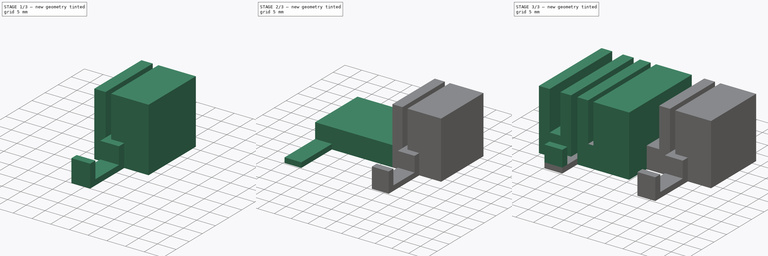
[diagram: build sequence overview — one tinted view per stage of 3, left to right]
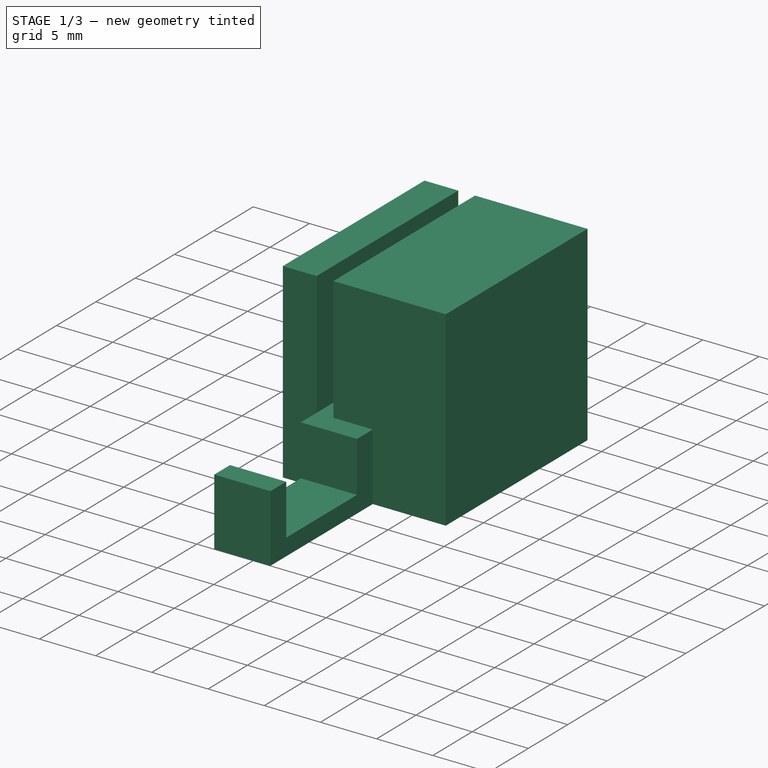
[diagram: stage 1 of 3 — iso view after this stage's code; geometry added in this stage tinted green]
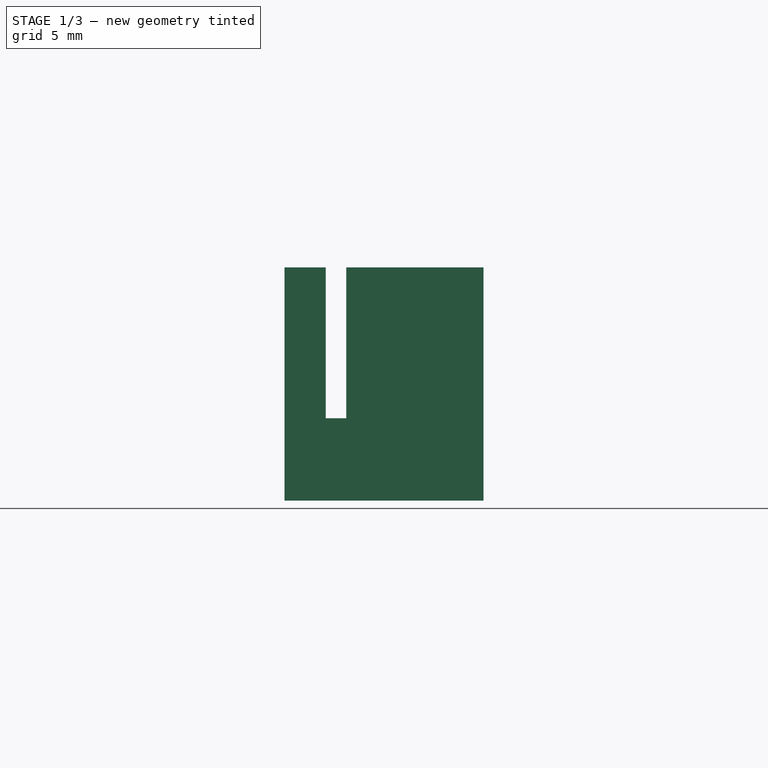
[diagram: stage 1 of 3 — front view after this stage's code; geometry added in this stage tinted green]
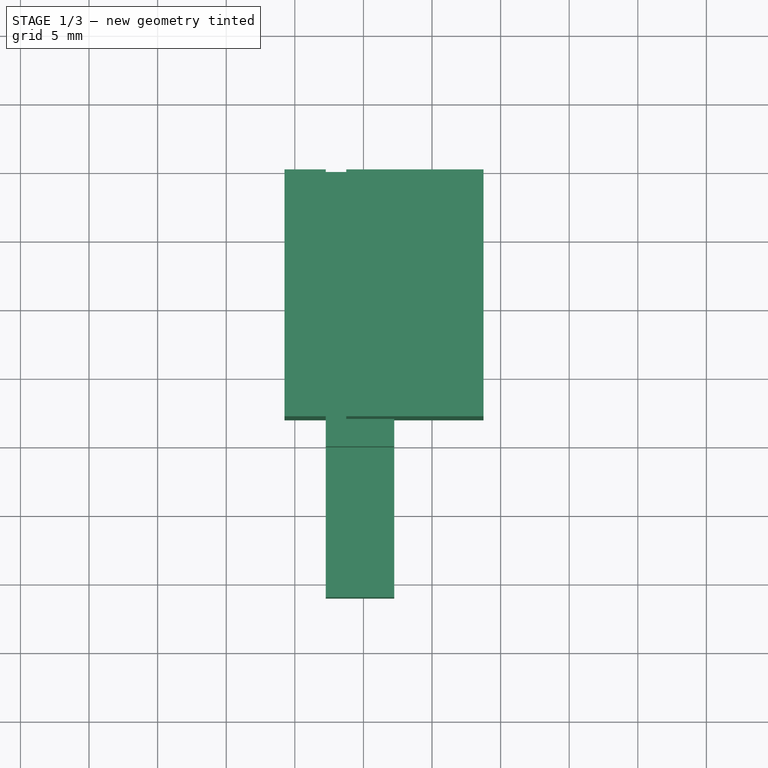
[diagram: stage 1 of 3 — top view after this stage's code; geometry added in this stage tinted green]
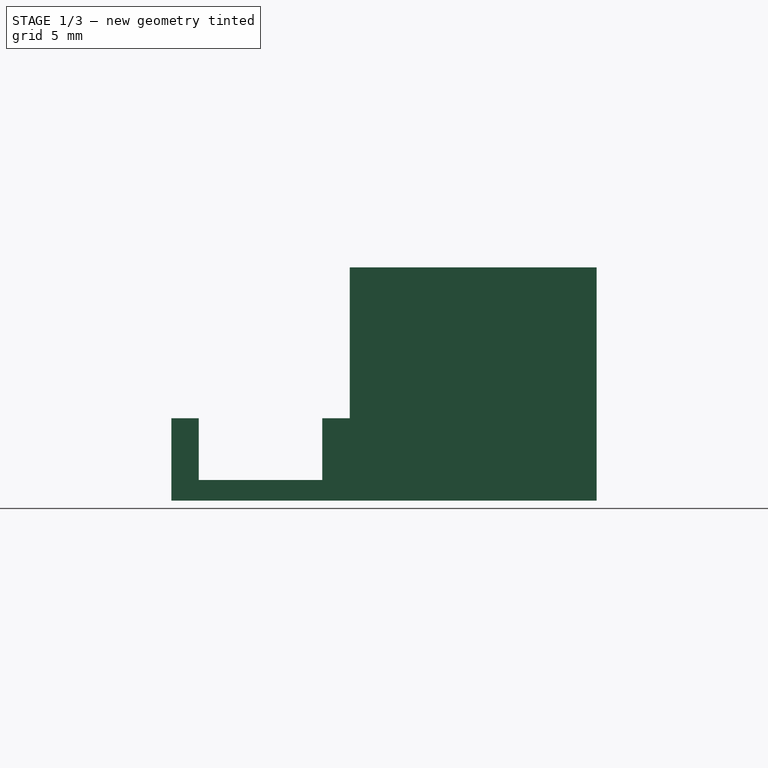
[diagram: stage 1 of 3 — right view after this stage's code; geometry added in this stage tinted green]
FCSTD DOCUMENT  (FreeCAD 0.16R)
Label: dystans
License: All rights reserved
LicenseURL: http://en.wikipedia.org/wiki/All_rights_reserved
objects: Sketcher::SketchObject×8, PartDesign::Pad×8
note: 24 computed .brp shape members not serialized (recipe doc carries the construction recipe); baked Part::Feature solids carry a one-line shape summary decoded from their .brp

FEATURE [Sketcher::SketchObject] Sketch003
  Placement = pos=(28,0,0) rot=(1,0,0;1.5708rad)
  sketch-geometry (8):
    g0: LineSegment StartX=-3.75 StartY=17 StartZ=0 EndX=-0.75 EndY=17 EndZ=0
    g1: LineSegment StartX=-0.75 StartY=17 StartZ=0 EndX=-0.75 EndY=6 EndZ=0
    g2: LineSegment StartX=-0.75 StartY=6 StartZ=0 EndX=0.75 EndY=6 EndZ=0
    g3: LineSegment StartX=0.75 StartY=6 StartZ=0 EndX=0.75 EndY=17 EndZ=0
    g4: LineSegment StartX=0.75 StartY=17 StartZ=0 EndX=10.75 EndY=17 EndZ=0
    g5: LineSegment StartX=10.75 StartY=17 StartZ=0 EndX=10.75 EndY=0 EndZ=0
    g6: LineSegment StartX=10.75 StartY=0 StartZ=0 EndX=-3.75 EndY=0 EndZ=0
    g7: LineSegment StartX=-3.75 StartY=0 StartZ=0 EndX=-3.75 EndY=17 EndZ=0
  constraints (23):
    c: Horizontal(g0)
    c: Coincident(g1,g0)
    c: Vertical(g1)
    c: Coincident(g2,g1)
    c: Horizontal(g2)
    c: Vertical(g3)
    c: Coincident(g4,g3)
    c: Horizontal(g4)
    c: Vertical(g5)
    c: Coincident(g6,g5)
    c: Horizontal(g6)
    c: Coincident(g7,g6)
    c: Vertical(g7)
    c: Coincident(g7,g0)
    c: Coincident(g2,g3)
    c: Symmetric(g0,g3,g-2)
    c: PointOnObject(g5,g-1)
    c: DistanceX(g0,g0) = 3
    c: DistanceY(g1,g1) = 11
    c: DistanceY(g7,g7) = 17
    c: DistanceX(g2,g2) = 1.5
    c: Coincident(g5,g4)
    c: DistanceX(g4,g4) = 10
FEATURE [PartDesign::Pad] Pad002
  Length = 18
  Length2 = 100
  Placement = pos=(28,0,0) rot=(1,0,0;1.5708rad)
  Sketch = -> Sketch003
  Type = 0
FEATURE [Sketcher::SketchObject] Sketch
  ExternalGeometry = -> [Pad002]
  Placement = pos=(28,-18,0) rot=(1,0,0;1.5708rad)
  Support = -> Pad002 [Face10]
  sketch-geometry (5):
    g0: LineSegment StartX=-0.75 StartY=0 StartZ=0 EndX=4.25 EndY=0 EndZ=0
    g1: LineSegment StartX=4.25 StartY=0 StartZ=0 EndX=4.25 EndY=1.5 EndZ=0
    g2: LineSegment StartX=4.25 StartY=1.5 StartZ=0 EndX=-0.75 EndY=1.5 EndZ=0
    g3: LineSegment StartX=-0.75 StartY=1.5 StartZ=0 EndX=-0.75 EndY=0 EndZ=0
    g4: LineSegment [constr] StartX=-0.75 StartY=6 StartZ=0 EndX=-0.75 EndY=0 EndZ=0
  constraints (15):
    c: Coincident(g0,g1)
    c: Coincident(g1,g2)
    c: Coincident(g2,g3)
    c: Coincident(g3,g0)
    c: Horizontal(g0)
    c: Horizontal(g2)
    c: Vertical(g1)
    c: Vertical(g3)
    c: DistanceY(g0,g1) = 1.5
    c: PointOnObject(g0,g-3)
    c: Coincident(g4,g-8)
    c: PointOnObject(g4,g-3)
    c: Vertical(g4)
    c: PointOnObject(g2,g4)
    c: DistanceX(g2,g2) = 5
FEATURE [PartDesign::Pad] Pad003
  Length = 13
  Length2 = 100
  Placement = pos=(28,0,0) rot=(1,0,0;1.5708rad)
  Sketch = -> Sketch
  Type = 0
  expr: Length = 31 - 18
FEATURE [Sketcher::SketchObject] Sketch004
  ExternalGeometry = -> [Pad003]
  Placement = pos=(28,0,1.5) rot=(0,0,1;3.14159rad)
  Support = -> Pad003 [Face12]
  sketch-geometry (12):
    g0: LineSegment StartX=-4.25 StartY=31 StartZ=0 EndX=0.75 EndY=31 EndZ=0
    g1: LineSegment StartX=0.75 StartY=31 StartZ=0 EndX=0.75 EndY=29 EndZ=0
    g2: LineSegment StartX=0.75 StartY=29 StartZ=0 EndX=-4.25 EndY=29 EndZ=0
    g3: LineSegment StartX=-4.25 StartY=29 StartZ=0 EndX=-4.25 EndY=31 EndZ=0
    g4: LineSegment StartX=0.75 StartY=18 StartZ=0 EndX=-4.25 EndY=18 EndZ=0
    g5: LineSegment StartX=-4.25 StartY=18 StartZ=0 EndX=-4.25 EndY=20 EndZ=0
    g6: LineSegment StartX=-4.25 StartY=20 StartZ=0 EndX=0.75 EndY=20 EndZ=0
    g7: LineSegment StartX=0.75 StartY=20 StartZ=0 EndX=0.75 EndY=18 EndZ=0
    g8: LineSegment [constr] StartX=-4.25 StartY=20 StartZ=0 EndX=-4.25 EndY=18 EndZ=0
    g9: LineSegment [constr] StartX=-4.25 StartY=31 StartZ=0 EndX=-4.25 EndY=29 EndZ=0
    g10: LineSegment [constr] StartX=-4.25 StartY=20 StartZ=0 EndX=0.75 EndY=18 EndZ=0
    g11: LineSegment [constr] StartX=-4.25 StartY=31 StartZ=0 EndX=0.75 EndY=29 EndZ=0
  constraints (30):
    c: Coincident(g0,g1)
    c: Coincident(g1,g2)
    c: Coincident(g2,g3)
    c: Coincident(g3,g0)
    c: Horizontal(g0)
    c: Horizontal(g2)
    c: Vertical(g1)
    c: Vertical(g3)
    c: Coincident(g0,g-4)
    c: PointOnObject(g1,g-5)
    c: Coincident(g4,g5)
    c: Coincident(g5,g6)
    c: Coincident(g6,g7)
    c: Coincident(g7,g4)
    c: Horizontal(g4)
    c: Horizontal(g6)
    c: Vertical(g5)
    c: Vertical(g7)
    c: Coincident(g4,g-6)
    c: PointOnObject(g5,g-3)
    c: DistanceY(g5,g2) = 9
    c: Coincident(g8,g5)
    c: Coincident(g8,g4)
    c: Coincident(g9,g0)
    c: Coincident(g9,g2)
    c: Coincident(g10,g5)
    c: Coincident(g10,g4)
    c: Coincident(g11,g0)
    c: Coincident(g11,g1)
    c: Equal(g10,g11)
FEATURE [PartDesign::Pad] Pad004  label="antentowy"
  Length = 4.5
  Length2 = 100
  Placement = pos=(28,0,0) rot=(1,0,0;1.5708rad)
  Sketch = -> Sketch004
  Type = 0
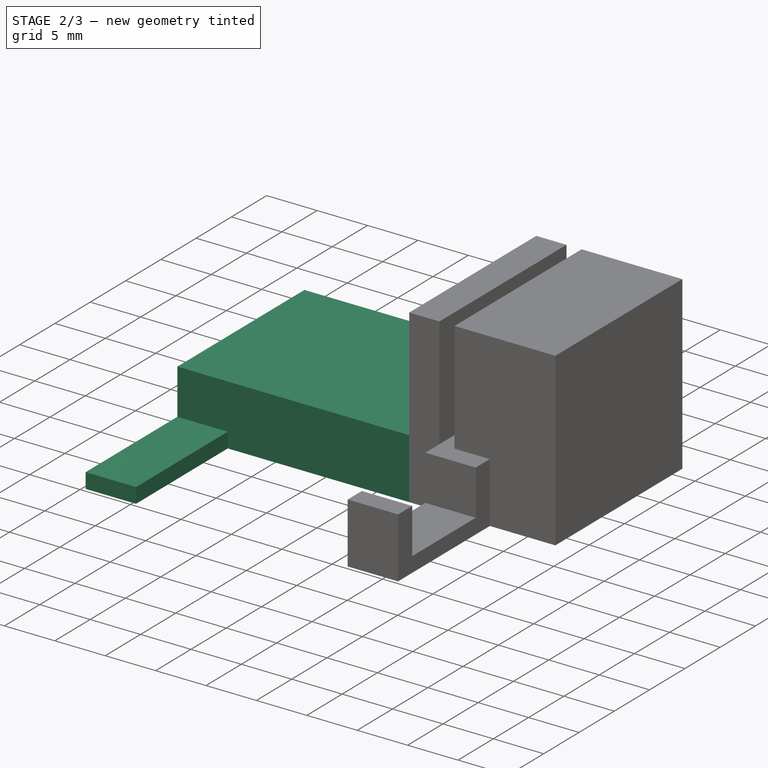
[diagram: stage 2 of 3 — iso view after this stage's code; geometry added in this stage tinted green]
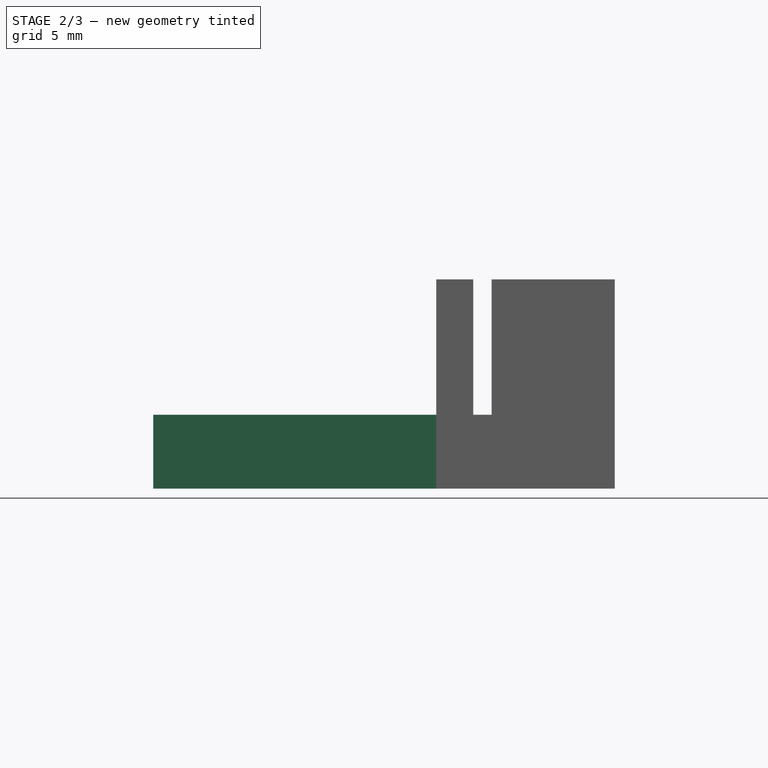
[diagram: stage 2 of 3 — front view after this stage's code; geometry added in this stage tinted green]
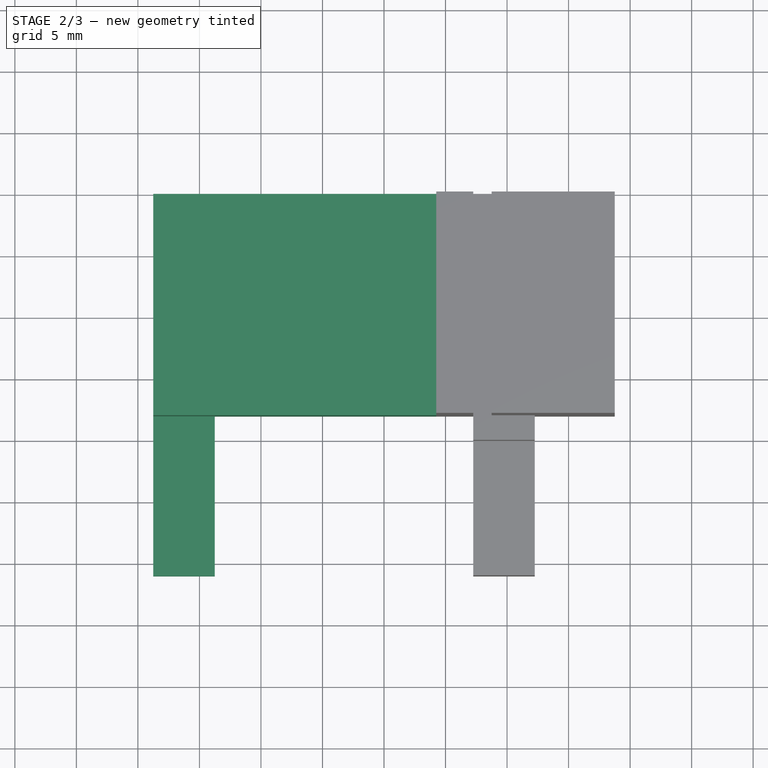
[diagram: stage 2 of 3 — top view after this stage's code; geometry added in this stage tinted green]
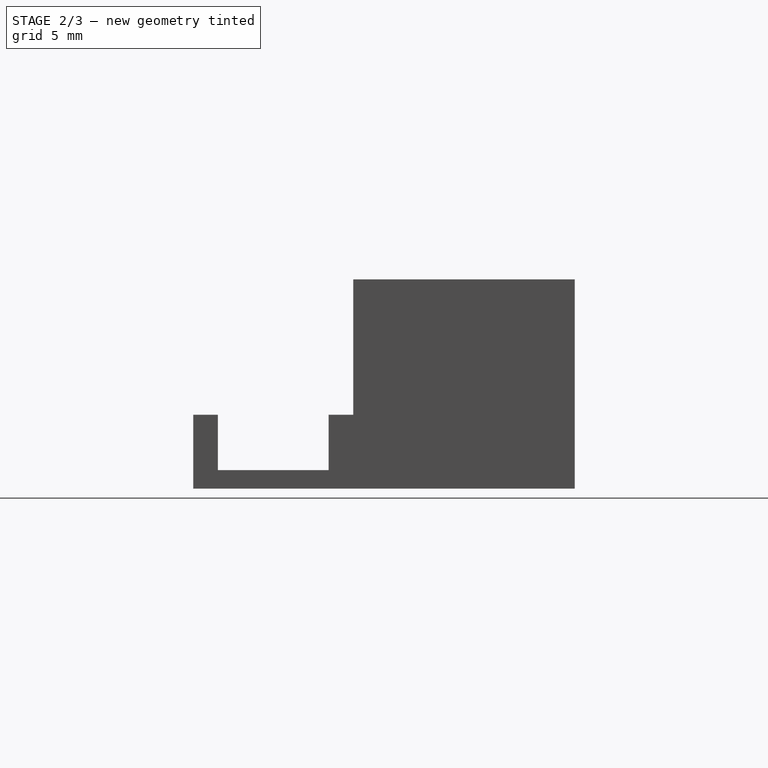
[diagram: stage 2 of 3 — right view after this stage's code; geometry added in this stage tinted green]
FEATURE [Sketcher::SketchObject] Sketch005
  ExternalGeometry = -> [Pad004]
  Placement = pos=(24.25,0,0) rot=(0.707107,0,-0.707107;3.14159rad)
  Support = -> Pad004 [Face2]
  sketch-geometry (4):
    g0: LineSegment StartX=0 StartY=18 StartZ=0 EndX=-6 EndY=18 EndZ=0
    g1: LineSegment StartX=-6 StartY=18 StartZ=0 EndX=-6 EndY=0 EndZ=0
    g2: LineSegment StartX=-6 StartY=0 StartZ=0 EndX=0 EndY=0 EndZ=0
    g3: LineSegment StartX=0 StartY=0 StartZ=0 EndX=0 EndY=18 EndZ=0
  constraints (11):
    c: Coincident(g0,g1)
    c: Coincident(g1,g2)
    c: Coincident(g2,g3)
    c: Coincident(g3,g0)
    c: Horizontal(g0)
    c: Horizontal(g2)
    c: Vertical(g1)
    c: Vertical(g3)
    c: Coincident(g0,g-4)
    c: PointOnObject(g1,g-5)
    c: DistanceX(g1,g-1) = 6
FEATURE [PartDesign::Pad] Pad005
  Length = 23
  Length2 = 100
  Placement = pos=(28,0,0) rot=(1,0,0;1.5708rad)
  Sketch = -> Sketch005
  Type = 0
FEATURE [Sketcher::SketchObject] Sketch006
  ExternalGeometry = -> [Pad005]
  Placement = pos=(28,-18,0) rot=(1,0,0;1.5708rad)
  Support = -> Pad005 [Face13]
  sketch-geometry (4):
    g0: LineSegment StartX=-26.75 StartY=0 StartZ=0 EndX=-21.75 EndY=0 EndZ=0
    g1: LineSegment StartX=-21.75 StartY=0 StartZ=0 EndX=-21.75 EndY=1.5 EndZ=0
    g2: LineSegment StartX=-21.75 StartY=1.5 StartZ=0 EndX=-26.75 EndY=1.5 EndZ=0
    g3: LineSegment StartX=-26.75 StartY=1.5 StartZ=0 EndX=-26.75 EndY=0 EndZ=0
  constraints (11):
    c: Coincident(g0,g1)
    c: Coincident(g1,g2)
    c: Coincident(g2,g3)
    c: Coincident(g3,g0)
    c: Horizontal(g0)
    c: Horizontal(g2)
    c: Vertical(g1)
    c: Vertical(g3)
    c: Coincident(g0,g-4)
    c: DistanceX(g2,g2) = 5
    c: DistanceY(g1,g1) = 1.5
FEATURE [PartDesign::Pad] Pad006
  Length = 13
  Length2 = 100
  Placement = pos=(28,0,0) rot=(1,0,0;1.5708rad)
  Sketch = -> Sketch006
  Type = 0
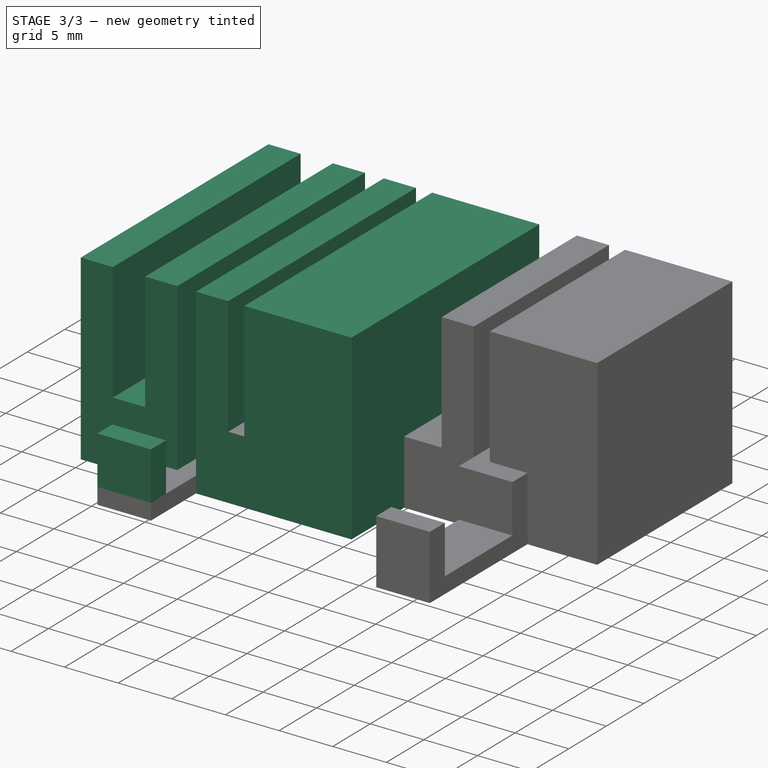
[diagram: stage 3 of 3 — iso view after this stage's code; geometry added in this stage tinted green]
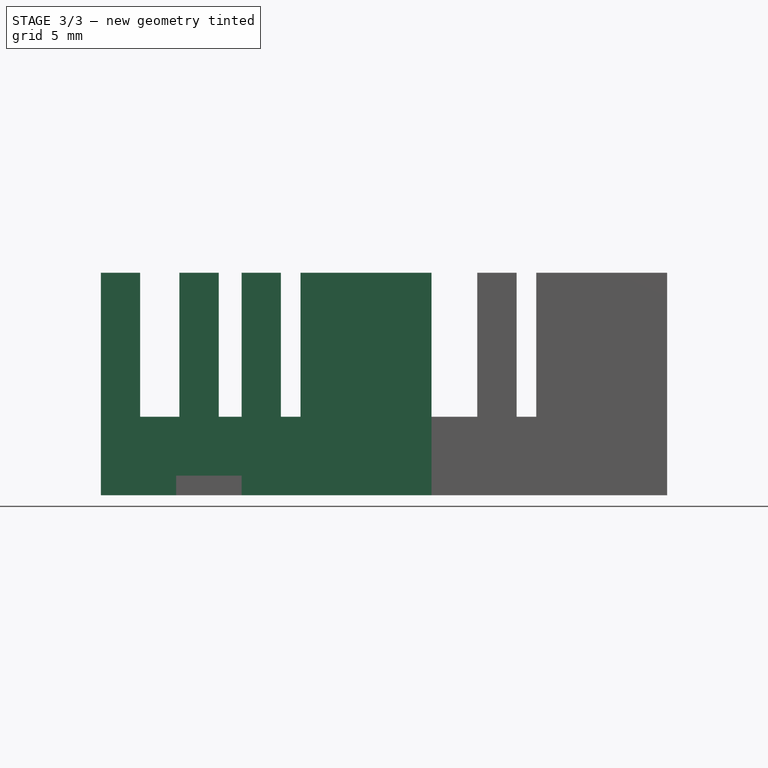
[diagram: stage 3 of 3 — front view after this stage's code; geometry added in this stage tinted green]
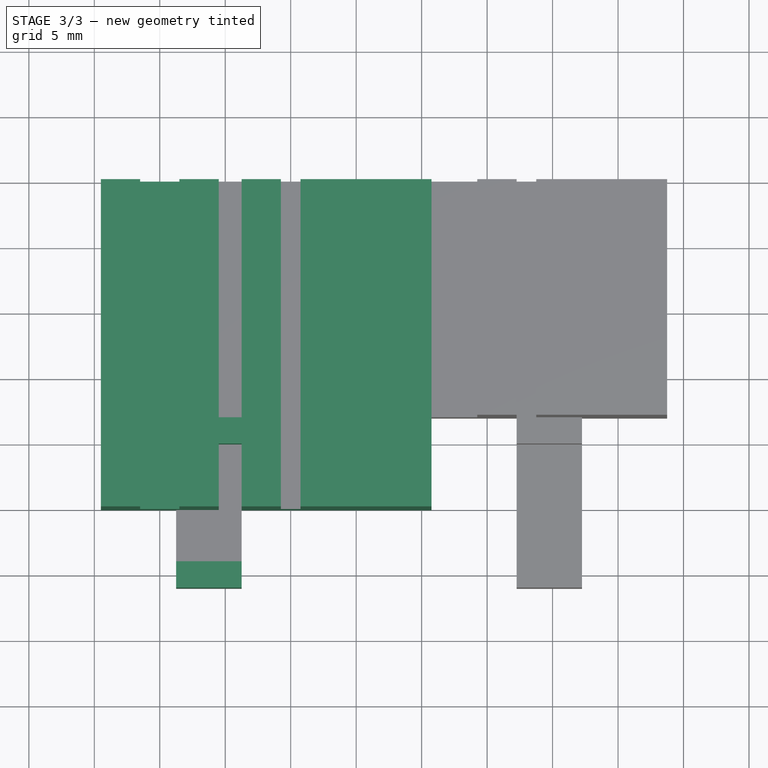
[diagram: stage 3 of 3 — top view after this stage's code; geometry added in this stage tinted green]
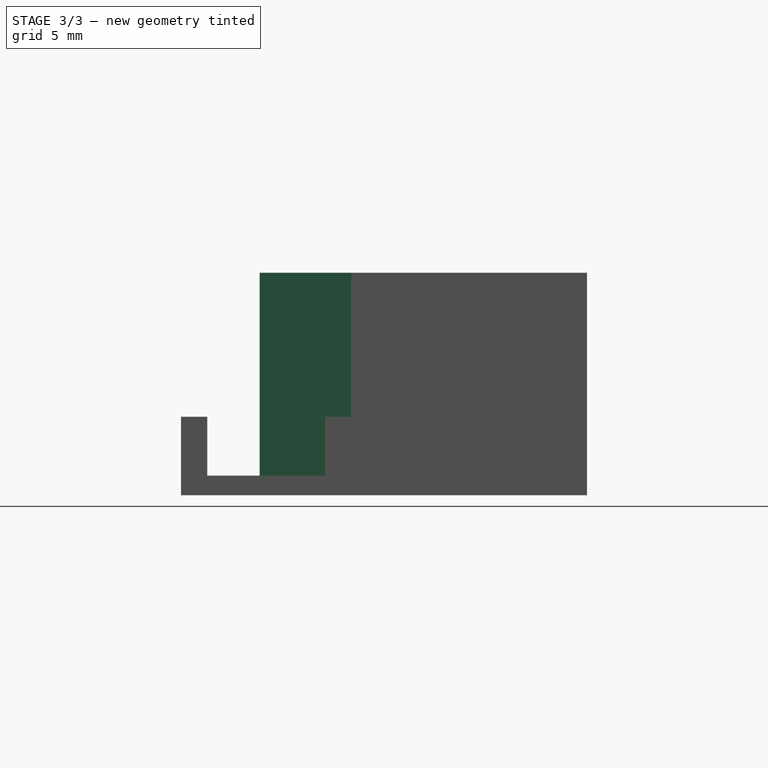
[diagram: stage 3 of 3 — right view after this stage's code; geometry added in this stage tinted green]
FEATURE [Sketcher::SketchObject] Sketch001
  Placement = pos=(0,0,0) rot=(1,0,0;1.5708rad)
  sketch-geometry (8):
    g0: LineSegment StartX=-4.5 StartY=17 StartZ=0 EndX=-1.5 EndY=17 EndZ=0
    g1: LineSegment StartX=-1.5 StartY=17 StartZ=0 EndX=-1.5 EndY=6 EndZ=0
    g2: LineSegment StartX=-1.5 StartY=6 StartZ=0 EndX=1.5 EndY=6 EndZ=0
    g3: LineSegment StartX=1.5 StartY=6 StartZ=0 EndX=1.5 EndY=17 EndZ=0
    g4: LineSegment StartX=1.5 StartY=17 StartZ=0 EndX=4.5 EndY=17 EndZ=0
    g5: LineSegment StartX=4.5 StartY=17 StartZ=0 EndX=4.5 EndY=0 EndZ=0
    g6: LineSegment StartX=4.5 StartY=0 StartZ=0 EndX=-4.5 EndY=0 EndZ=0
    g7: LineSegment StartX=-4.5 StartY=0 StartZ=0 EndX=-4.5 EndY=17 EndZ=0
  constraints (23):
    c: Horizontal(g0)
    c: Coincident(g1,g0)
    c: Vertical(g1)
    c: Coincident(g2,g1)
    c: Horizontal(g2)
    c: Vertical(g3)
    c: Coincident(g4,g3)
    c: Horizontal(g4)
    c: Vertical(g5)
    c: Coincident(g6,g5)
    c: Horizontal(g6)
    c: Coincident(g7,g6)
    c: Vertical(g7)
    c: Coincident(g7,g0)
    c: Coincident(g2,g3)
    c: Symmetric(g0,g3,g-2)
    c: PointOnObject(g5,g-1)
    c: DistanceX(g0,g0) = 3
    c: DistanceY(g1,g1) = 11
    c: DistanceY(g7,g7) = 17
    c: DistanceX(g2,g2) = 3
    c: Coincident(g5,g4)
    c: DistanceX(g4,g4) = 3
FEATURE [PartDesign::Pad] Pad  label="zwykly"
  Length = 25
  Length2 = 100
  Placement = pos=(0,0,0) rot=(1,0,0;1.5708rad)
  Sketch = -> Sketch001
  Type = 0
FEATURE [Sketcher::SketchObject] Sketch002
  Placement = pos=(10,0,0) rot=(1,0,0;1.5708rad)
  sketch-geometry (8):
    g0: LineSegment StartX=-3.75 StartY=17 StartZ=0 EndX=-0.75 EndY=17 EndZ=0
    g1: LineSegment StartX=-0.75 StartY=17 StartZ=0 EndX=-0.75 EndY=6 EndZ=0
    g2: LineSegment StartX=-0.75 StartY=6 StartZ=0 EndX=0.75 EndY=6 EndZ=0
    g3: LineSegment StartX=0.75 StartY=6 StartZ=0 EndX=0.75 EndY=17 EndZ=0
    g4: LineSegment StartX=0.75 StartY=17 StartZ=0 EndX=10.75 EndY=17 EndZ=0
    g5: LineSegment StartX=10.75 StartY=17 StartZ=0 EndX=10.75 EndY=0 EndZ=0
    g6: LineSegment StartX=10.75 StartY=0 StartZ=0 EndX=-3.75 EndY=0 EndZ=0
    g7: LineSegment StartX=-3.75 StartY=0 StartZ=0 EndX=-3.75 EndY=17 EndZ=0
  constraints (23):
    c: Horizontal(g0)
    c: Coincident(g1,g0)
    c: Vertical(g1)
    c: Coincident(g2,g1)
    c: Horizontal(g2)
    c: Vertical(g3)
    c: Coincident(g4,g3)
    c: Horizontal(g4)
    c: Vertical(g5)
    c: Coincident(g6,g5)
    c: Horizontal(g6)
    c: Coincident(g7,g6)
    c: Vertical(g7)
    c: Coincident(g7,g0)
    c: Coincident(g2,g3)
    c: Symmetric(g0,g3,g-2)
    c: PointOnObject(g5,g-1)
    c: DistanceX(g0,g0) = 3
    c: DistanceY(g1,g1) = 11
    c: DistanceY(g7,g7) = 17
    c: DistanceX(g2,g2) = 1.5
    c: Coincident(g5,g4)
    c: DistanceX(g4,g4) = 10
FEATURE [PartDesign::Pad] Pad001  label="krancowy"
  Length = 25
  Length2 = 100
  Placement = pos=(10,0,0) rot=(1,0,0;1.5708rad)
  Sketch = -> Sketch002
  Type = 0
FEATURE [Sketcher::SketchObject] Sketch007
  ExternalGeometry = -> [Pad006]
  Placement = pos=(28,0,1.5) rot=(0,0,1;3.14159rad)
  Support = -> Pad006 [Face21]
  sketch-geometry (8):
    g0: LineSegment StartX=21.75 StartY=31 StartZ=0 EndX=26.75 EndY=31 EndZ=0
    g1: LineSegment StartX=26.75 StartY=31 StartZ=0 EndX=26.75 EndY=29 EndZ=0
    g2: LineSegment StartX=26.75 StartY=29 StartZ=0 EndX=21.75 EndY=29 EndZ=0
    g3: LineSegment StartX=21.75 StartY=29 StartZ=0 EndX=21.75 EndY=31 EndZ=0
    g4: LineSegment StartX=21.75 StartY=18 StartZ=0 EndX=26.75 EndY=18 EndZ=0
    g5: LineSegment StartX=26.75 StartY=18 StartZ=0 EndX=26.75 EndY=20 EndZ=0
    g6: LineSegment StartX=26.75 StartY=20 StartZ=0 EndX=21.75 EndY=20 EndZ=0
    g7: LineSegment StartX=21.75 StartY=20 StartZ=0 EndX=21.75 EndY=18 EndZ=0
  constraints (22):
    c: Coincident(g0,g1)
    c: Coincident(g1,g2)
    c: Coincident(g2,g3)
    c: Coincident(g3,g0)
    c: Horizontal(g0)
    c: Horizontal(g2)
    c: Vertical(g1)
    c: Vertical(g3)
    c: Coincident(g0,g-4)
    c: PointOnObject(g1,g-5)
    c: Coincident(g4,g5)
    c: Coincident(g5,g6)
    c: Coincident(g6,g7)
    c: Coincident(g7,g4)
    c: Horizontal(g4)
    c: Horizontal(g6)
    c: Vertical(g5)
    c: Vertical(g7)
    c: Coincident(g4,g-6)
    c: PointOnObject(g5,g-5)
    c: DistanceY(g4,g6) = 2
    c: DistanceY(g2,g0) = 2
FEATURE [PartDesign::Pad] Pad007  label="antenowy gotowy"
  Length = 4.5
  Length2 = 100
  Placement = pos=(28,0,0) rot=(1,0,0;1.5708rad)
  Sketch = -> Sketch007
  Type = 0
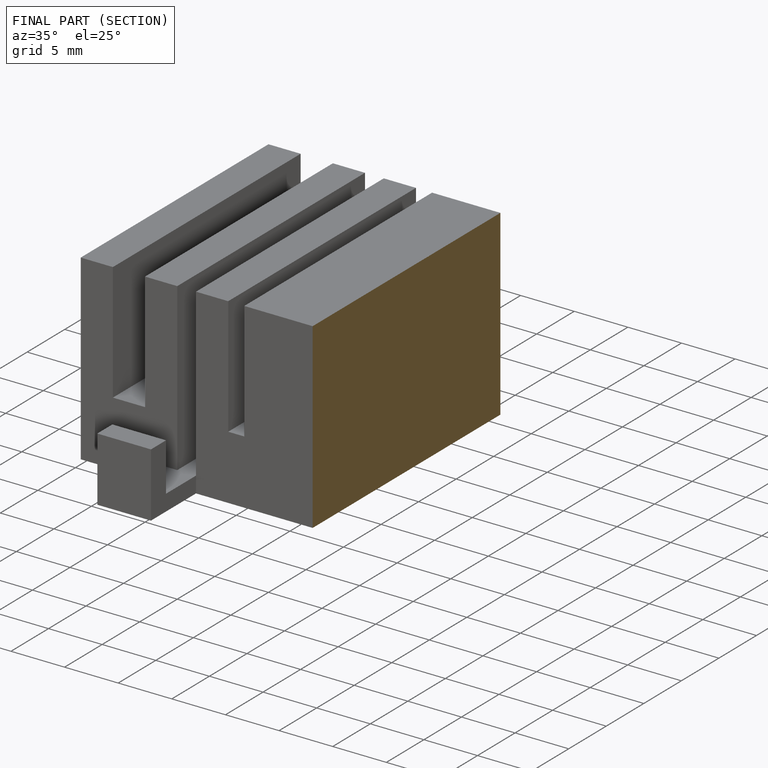
[diagram: finished part — half-section view (interior)]
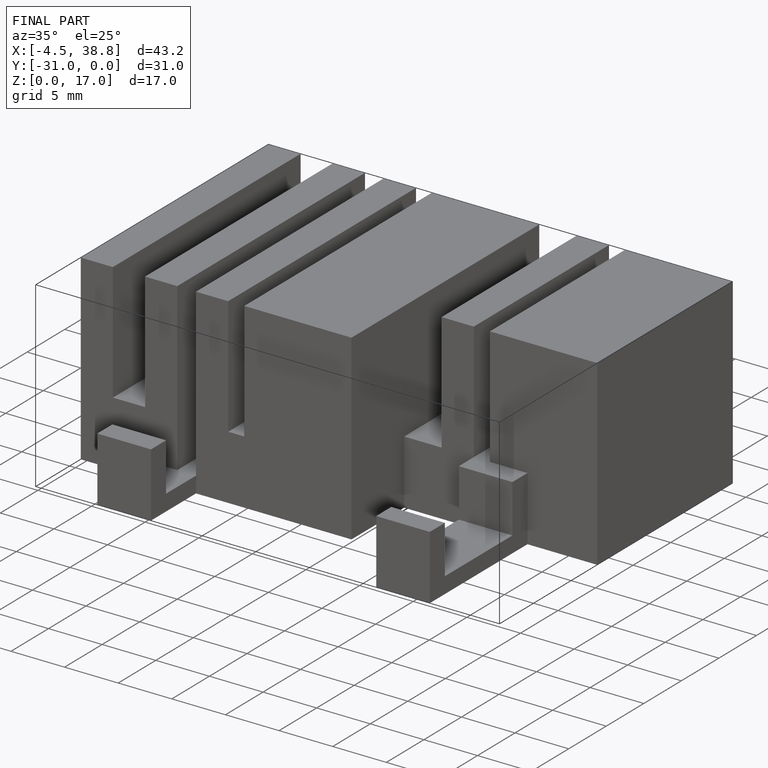
[diagram: finished part — iso view with bounding-box wireframe]
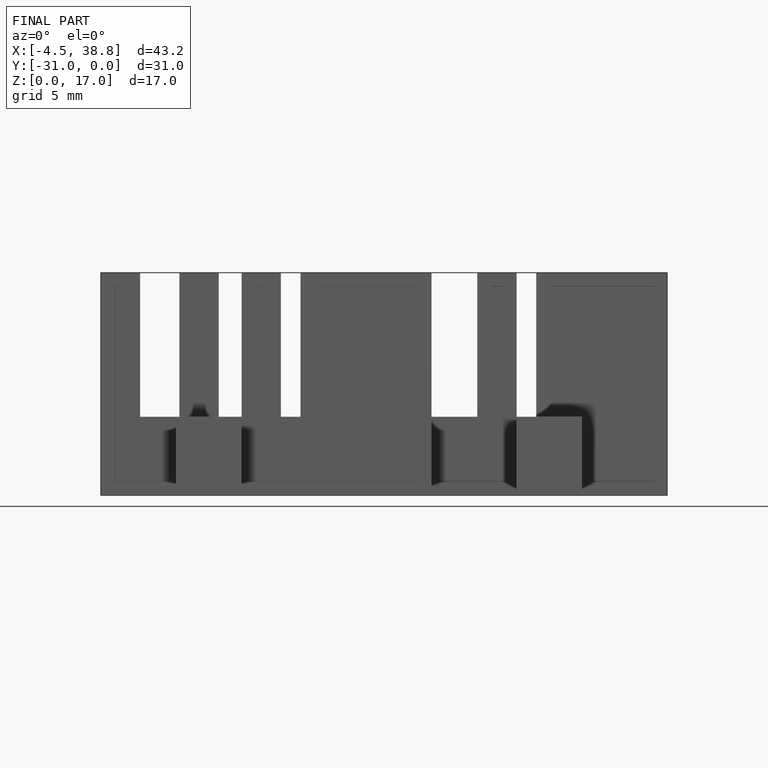
[diagram: finished part — front view with bounding-box wireframe]
